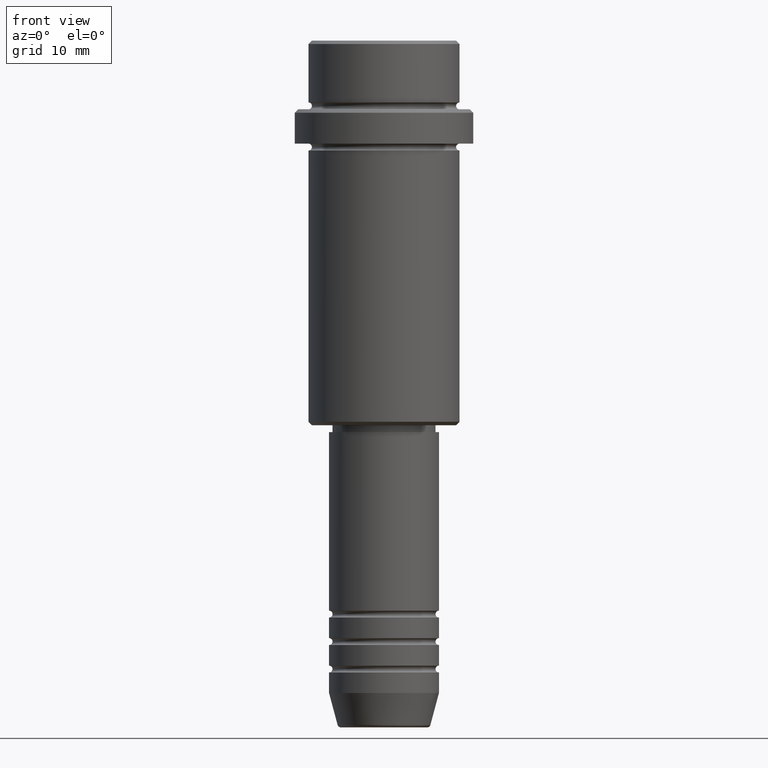
[diagram: clean part render]
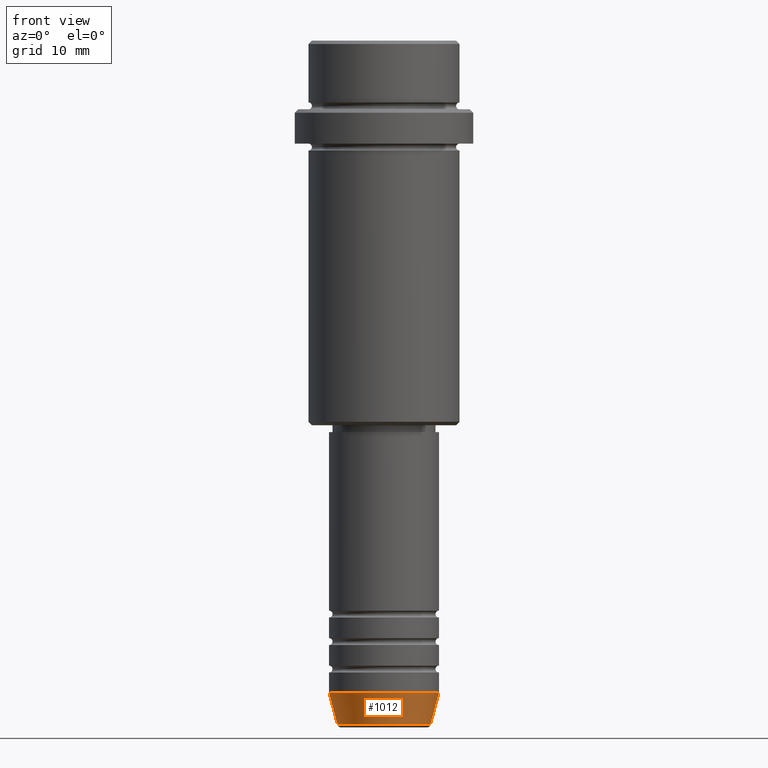
[diagram: same view with one face highlighted and labeled with its STEP entity id]
A machine part, front view. The second image highlights one B-rep face of the part: STEP entity #1012.
In plain terms, the highlighted conical surface has half-angle 15 deg.
Its self-contained STEP definition (entity closure, byte-faithful):
#1 = EDGE_CURVE ( 'NONE', #481, #1380, #1241, .T. ) ;
#29 = AXIS2_PLACEMENT_3D ( 'NONE', #220, #229, #649 ) ;
#67 = CARTESIAN_POINT ( 'NONE',  ( 6.759553456999436882, 0.000000000000000000, -99.62940952255127058 ) ) ;
#88 = FACE_OUTER_BOUND ( 'NONE', #1088, .T. ) ;
#179 = CARTESIAN_POINT ( 'NONE',  ( 0.000000000000000000, 0.000000000000000000, -99.62940952255127058 ) ) ;
#220 = CARTESIAN_POINT ( 'NONE',  ( 0.000000000000000000, 0.000000000000000000, -95.00000000000000000 ) ) ;
#229 = DIRECTION ( 'NONE',  ( -0.000000000000000000, -0.000000000000000000, 1.000000000000000000 ) ) ;
#250 = EDGE_CURVE ( 'NONE', #358, #481, #471, .T. ) ;
#286 = ORIENTED_EDGE ( 'NONE', *, *, #1265, .T. ) ;
#358 = VERTEX_POINT ( 'NONE', #1286 ) ;
#359 = AXIS2_PLACEMENT_3D ( 'NONE', #179, #387, #821 ) ;
#362 = DIRECTION ( 'NONE',  ( 1.000000000000000000, 0.000000000000000000, 0.000000000000000000 ) ) ;
#387 = DIRECTION ( 'NONE',  ( -0.000000000000000000, -0.000000000000000000, 1.000000000000000000 ) ) ;
#471 = LINE ( 'NONE', #689, #671 ) ;
#481 = VERTEX_POINT ( 'NONE', #1077 ) ;
#491 = ORIENTED_EDGE ( 'NONE', *, *, #1391, .T. ) ;
#649 = DIRECTION ( 'NONE',  ( 1.000000000000000000, 0.000000000000000000, 0.000000000000000000 ) ) ;
#671 = VECTOR ( 'NONE', #1343, 1000.000000000000000 ) ;
#689 = CARTESIAN_POINT ( 'NONE',  ( -8.000000000000000000, 9.797174393178825657E-16, -95.00000000000000000 ) ) ;
#717 = VERTEX_POINT ( 'NONE', #67 ) ;
#778 = LINE ( 'NONE', #1319, #927 ) ;
#801 = CARTESIAN_POINT ( 'NONE',  ( 8.000000000000000000, 0.000000000000000000, -95.00000000000000000 ) ) ;
#821 = DIRECTION ( 'NONE',  ( 1.000000000000000000, 0.000000000000000000, 0.000000000000000000 ) ) ;
#881 = AXIS2_PLACEMENT_3D ( 'NONE', #917, #1371, #362 ) ;
#917 = CARTESIAN_POINT ( 'NONE',  ( 0.000000000000000000, 0.000000000000000000, -95.00000000000000000 ) ) ;
#927 = VECTOR ( 'NONE', #1007, 1000.000000000000000 ) ;
#1007 = DIRECTION ( 'NONE',  ( 0.2588190451025213501, 0.000000000000000000, 0.9659258262890680902 ) ) ;
#1012 = ADVANCED_FACE ( 'NONE', ( #88 ), #1095, .T. ) ;
#1077 = CARTESIAN_POINT ( 'NONE',  ( -8.000000000000000000, 9.797174393178825657E-16, -95.00000000000000000 ) ) ;
#1088 = EDGE_LOOP ( 'NONE', ( #1408, #491, #286, #1326 ) ) ;
#1095 = CONICAL_SURFACE ( 'NONE', #29, 8.000000000000000000, 0.2617993877991500740 ) ;
#1189 = CIRCLE ( 'NONE', #359, 6.759553456999436882 ) ;
#1241 = CIRCLE ( 'NONE', #881, 8.000000000000000000 ) ;
#1265 = EDGE_CURVE ( 'NONE', #717, #1380, #778, .T. ) ;
#1286 = CARTESIAN_POINT ( 'NONE',  ( -6.759553456999437770, 9.037619948979308185E-16, -99.62940952255127058 ) ) ;
#1319 = CARTESIAN_POINT ( 'NONE',  ( 8.000000000000000000, 0.000000000000000000, -95.00000000000000000 ) ) ;
#1326 = ORIENTED_EDGE ( 'NONE', *, *, #1, .F. ) ;
#1343 = DIRECTION ( 'NONE',  ( -0.2588190451025213501, 3.169619151431772337E-17, 0.9659258262890680902 ) ) ;
#1371 = DIRECTION ( 'NONE',  ( -0.000000000000000000, -0.000000000000000000, 1.000000000000000000 ) ) ;
#1380 = VERTEX_POINT ( 'NONE', #801 ) ;
#1391 = EDGE_CURVE ( 'NONE', #358, #717, #1189, .T. ) ;
#1408 = ORIENTED_EDGE ( 'NONE', *, *, #250, .F. ) ;